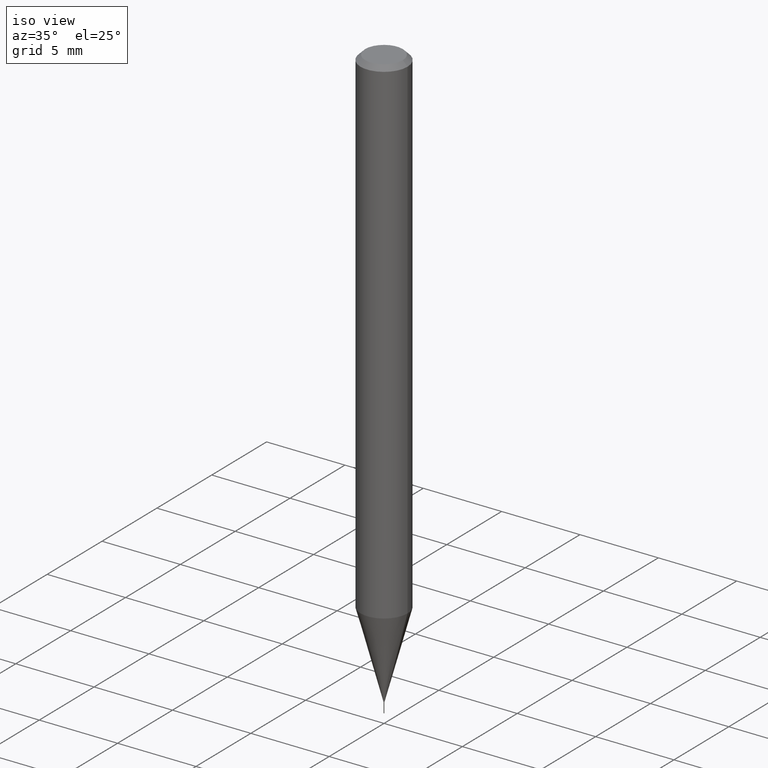
[diagram: clean part render]
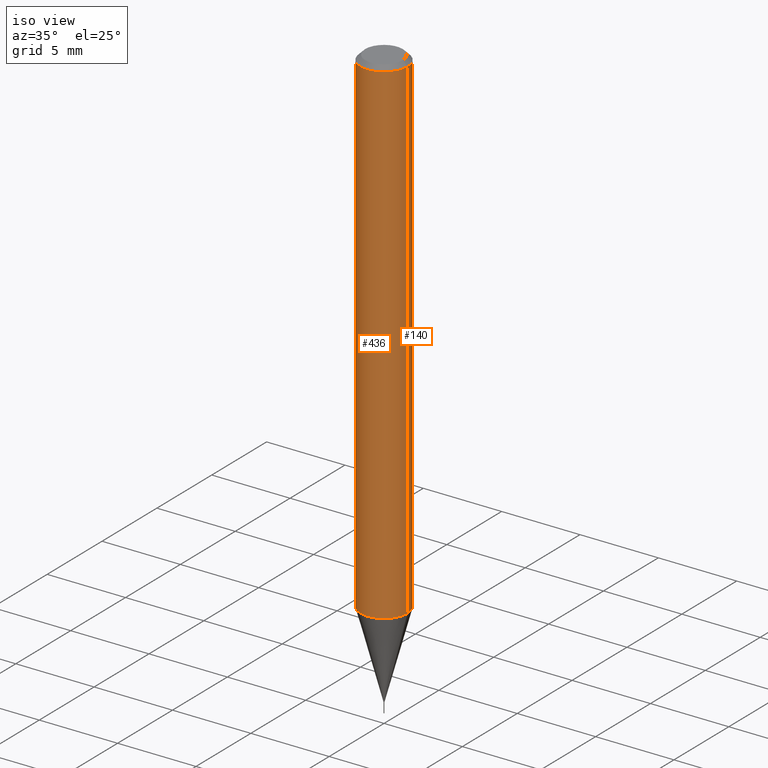
[diagram: same view with one multi-face feature highlighted, each face labeled with its STEP entity id]
A machine part, iso view. The highlighted faces form ONE feature: a constant-radius fillet chain: 2 tangent blend faces with common blend radius 1.4999 mm. The faces share edges in the B-rep.
Their STEP definitions:
[1] entity #436 (Cylinder):
#2 = CARTESIAN_POINT ( 'NONE',  ( -0.05905000000000014404, -3.955883447524345501E-15, -1.253181245539875643 ) ) ;
#3 = ORIENTED_EDGE ( 'NONE', *, *, #347, .F. ) ;
#20 = CARTESIAN_POINT ( 'NONE',  ( 3.064615644464002051E-29, -4.375458932990685782E-15, -1.253181245539875643 ) ) ;
#21 = VERTEX_POINT ( 'NONE', #2 ) ;
#48 = DIRECTION ( 'NONE',  ( -2.445468806185136597E-29, 3.491481338843145583E-15, 1.000000000000000000 ) ) ;
#67 = VERTEX_POINT ( 'NONE', #219 ) ;
#71 = CARTESIAN_POINT ( 'NONE',  ( 0.05905000000000014404, -4.787802879108061491E-15, -1.253181245539875643 ) ) ;
#84 = DIRECTION ( 'NONE',  ( -2.445468806185136597E-29, 3.491481338843145583E-15, 1.000000000000000000 ) ) ;
#87 = CARTESIAN_POINT ( 'NONE',  ( -0.05905000000000007465, 4.195754854663396902E-16, -2.904631170795525395E-30 ) ) ;
#91 = EDGE_CURVE ( 'NONE', #67, #181, #234, .T. ) ;
#105 = ORIENTED_EDGE ( 'NONE', *, *, #368, .T. ) ;
#109 = CIRCLE ( 'NONE', #343, 0.05905000000000015098 ) ;
#112 = DIRECTION ( 'NONE',  ( 1.000000000000000000, -6.982962677686266711E-15, 0.000000000000000000 ) ) ;
#127 = DIRECTION ( 'NONE',  ( -2.445468806185136877E-29, 3.491481338843145188E-15, 1.000000000000000000 ) ) ;
#153 = LINE ( 'NONE', #87, #486 ) ;
#161 = FACE_OUTER_BOUND ( 'NONE', #320, .T. ) ;
#176 = AXIS2_PLACEMENT_3D ( 'NONE', #468, #84, #433 ) ;
#181 = VERTEX_POINT ( 'NONE', #441 ) ;
#188 = VERTEX_POINT ( 'NONE', #71 ) ;
#210 = VECTOR ( 'NONE', #127, 39.37007874015748143 ) ;
#219 = CARTESIAN_POINT ( 'NONE',  ( -0.05904999999999999832, -1.788771178334871474E-15, -0.01181000000000007565 ) ) ;
#220 = DIRECTION ( 'NONE',  ( -2.445468806185136877E-29, 3.491481338843145188E-15, 1.000000000000000000 ) ) ;
#234 = CIRCLE ( 'NONE', #410, 0.05904999999999999832 ) ;
#316 = CYLINDRICAL_SURFACE ( 'NONE', #176, 0.05905000000000007465 ) ;
#320 = EDGE_LOOP ( 'NONE', ( #3, #439, #105, #348 ) ) ;
#343 = AXIS2_PLACEMENT_3D ( 'NONE', #20, #395, #476 ) ;
#347 = EDGE_CURVE ( 'NONE', #21, #67, #153, .T. ) ;
#348 = ORIENTED_EDGE ( 'NONE', *, *, #91, .F. ) ;
#368 = EDGE_CURVE ( 'NONE', #188, #181, #393, .T. ) ;
#386 = CARTESIAN_POINT ( 'NONE',  ( 0.05905000000000007465, -4.123439461173745750E-16, 2.879382386107504074E-30 ) ) ;
#393 = LINE ( 'NONE', #386, #210 ) ;
#395 = DIRECTION ( 'NONE',  ( -2.445468806185136597E-29, 3.491481338843145583E-15, 1.000000000000000000 ) ) ;
#410 = AXIS2_PLACEMENT_3D ( 'NONE', #452, #48, #112 ) ;
#433 = DIRECTION ( 'NONE',  ( 1.000000000000000000, -6.982962677686266711E-15, 4.876176775795936353E-29 ) ) ;
#436 = ADVANCED_FACE ( 'NONE', ( #161 ), #316, .T. ) ;
#439 = ORIENTED_EDGE ( 'NONE', *, *, #448, .T. ) ;
#441 = CARTESIAN_POINT ( 'NONE',  ( 0.05904999999999999832, -4.535783407291118600E-16, -0.01181000000000007565 ) ) ;
#448 = EDGE_CURVE ( 'NONE', #21, #188, #109, .T. ) ;
#452 = CARTESIAN_POINT ( 'NONE',  ( 2.888098660104664642E-31, -4.123439461173780879E-17, -0.01181000000000007565 ) ) ;
#468 = CARTESIAN_POINT ( 'NONE',  ( 0.000000000000000000, 0.000000000000000000, 0.000000000000000000 ) ) ;
#476 = DIRECTION ( 'NONE',  ( 1.000000000000000000, -6.982962677686271444E-15, 0.000000000000000000 ) ) ;
#486 = VECTOR ( 'NONE', #220, 39.37007874015748143 ) ;
[2] entity #140 (Cylinder):
#2 = CARTESIAN_POINT ( 'NONE',  ( -0.05905000000000014404, -3.955883447524345501E-15, -1.253181245539875643 ) ) ;
#21 = VERTEX_POINT ( 'NONE', #2 ) ;
#67 = VERTEX_POINT ( 'NONE', #219 ) ;
#69 = CARTESIAN_POINT ( 'NONE',  ( 3.064615644464002051E-29, -4.375458932990685782E-15, -1.253181245539875643 ) ) ;
#71 = CARTESIAN_POINT ( 'NONE',  ( 0.05905000000000014404, -4.787802879108061491E-15, -1.253181245539875643 ) ) ;
#87 = CARTESIAN_POINT ( 'NONE',  ( -0.05905000000000007465, 4.195754854663396902E-16, -2.904631170795525395E-30 ) ) ;
#96 = DIRECTION ( 'NONE',  ( 1.000000000000000000, -6.982962677686266711E-15, 0.000000000000000000 ) ) ;
#97 = CARTESIAN_POINT ( 'NONE',  ( 0.000000000000000000, 0.000000000000000000, 0.000000000000000000 ) ) ;
#127 = DIRECTION ( 'NONE',  ( -2.445468806185136877E-29, 3.491481338843145188E-15, 1.000000000000000000 ) ) ;
#136 = ORIENTED_EDGE ( 'NONE', *, *, #347, .T. ) ;
#140 = ADVANCED_FACE ( 'NONE', ( #469 ), #227, .T. ) ;
#153 = LINE ( 'NONE', #87, #486 ) ;
#166 = DIRECTION ( 'NONE',  ( -2.445468806185136597E-29, 3.491481338843145583E-15, 1.000000000000000000 ) ) ;
#181 = VERTEX_POINT ( 'NONE', #441 ) ;
#188 = VERTEX_POINT ( 'NONE', #71 ) ;
#190 = DIRECTION ( 'NONE',  ( 1.000000000000000000, -6.982962677686266711E-15, 4.876176775795936353E-29 ) ) ;
#210 = VECTOR ( 'NONE', #127, 39.37007874015748143 ) ;
#219 = CARTESIAN_POINT ( 'NONE',  ( -0.05904999999999999832, -1.788771178334871474E-15, -0.01181000000000007565 ) ) ;
#220 = DIRECTION ( 'NONE',  ( -2.445468806185136877E-29, 3.491481338843145188E-15, 1.000000000000000000 ) ) ;
#227 = CYLINDRICAL_SURFACE ( 'NONE', #258, 0.05905000000000007465 ) ;
#240 = DIRECTION ( 'NONE',  ( 1.000000000000000000, -6.982962677686271444E-15, 0.000000000000000000 ) ) ;
#251 = AXIS2_PLACEMENT_3D ( 'NONE', #344, #423, #96 ) ;
#258 = AXIS2_PLACEMENT_3D ( 'NONE', #97, #390, #190 ) ;
#294 = AXIS2_PLACEMENT_3D ( 'NONE', #69, #166, #240 ) ;
#329 = ORIENTED_EDGE ( 'NONE', *, *, #487, .T. ) ;
#344 = CARTESIAN_POINT ( 'NONE',  ( 2.888098660104664642E-31, -4.123439461173780879E-17, -0.01181000000000007565 ) ) ;
#347 = EDGE_CURVE ( 'NONE', #21, #67, #153, .T. ) ;
#368 = EDGE_CURVE ( 'NONE', #188, #181, #393, .T. ) ;
#377 = CIRCLE ( 'NONE', #294, 0.05905000000000015098 ) ;
#386 = CARTESIAN_POINT ( 'NONE',  ( 0.05905000000000007465, -4.123439461173745750E-16, 2.879382386107504074E-30 ) ) ;
#390 = DIRECTION ( 'NONE',  ( -2.445468806185136597E-29, 3.491481338843145583E-15, 1.000000000000000000 ) ) ;
#393 = LINE ( 'NONE', #386, #210 ) ;
#398 = EDGE_LOOP ( 'NONE', ( #329, #136, #462, #422 ) ) ;
#399 = EDGE_CURVE ( 'NONE', #181, #67, #455, .T. ) ;
#422 = ORIENTED_EDGE ( 'NONE', *, *, #368, .F. ) ;
#423 = DIRECTION ( 'NONE',  ( -2.445468806185136597E-29, 3.491481338843145583E-15, 1.000000000000000000 ) ) ;
#441 = CARTESIAN_POINT ( 'NONE',  ( 0.05904999999999999832, -4.535783407291118600E-16, -0.01181000000000007565 ) ) ;
#455 = CIRCLE ( 'NONE', #251, 0.05904999999999999832 ) ;
#462 = ORIENTED_EDGE ( 'NONE', *, *, #399, .F. ) ;
#469 = FACE_OUTER_BOUND ( 'NONE', #398, .T. ) ;
#486 = VECTOR ( 'NONE', #220, 39.37007874015748143 ) ;
#487 = EDGE_CURVE ( 'NONE', #188, #21, #377, .T. ) ;